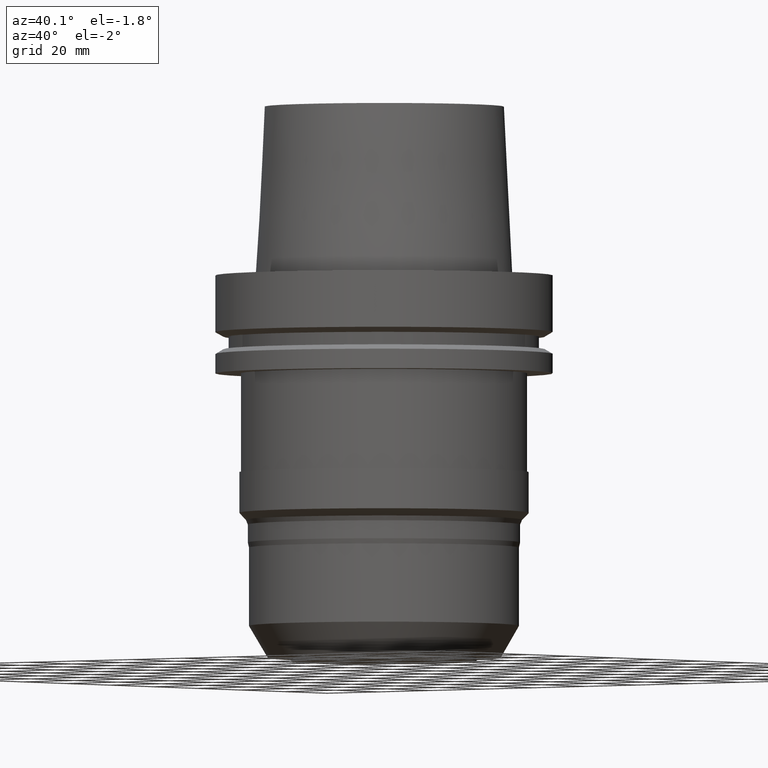
[diagram: clean part render]
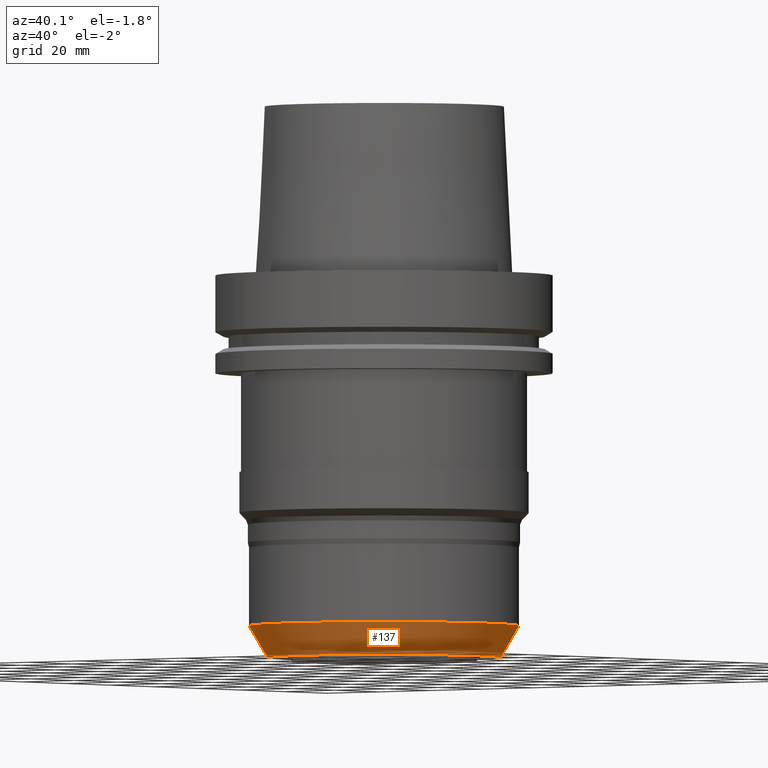
[diagram: same view with one face highlighted and labeled with its STEP entity id]
A machine part, auxiliary view. The second image highlights one B-rep face of the part: STEP entity #137.
In plain terms, the highlighted conical surface has half-angle 30 deg.
Its self-contained STEP definition (entity closure, byte-faithful):
#83=EDGE_CURVE('Unnamed[1]',#222,#222,#223,.T.);
#131=EDGE_CURVE('Unnamed[1]',#298,#298,#299,.T.);
#137=ADVANCED_FACE('Unnamed[1]',(#307,#308),#309,.T.);
#222=VERTEX_POINT('',#416);
#223=CIRCLE('',#417,39.9999995570343);
#298=VERTEX_POINT('',#511);
#299=CIRCLE('',#512,34.5151641397742);
#307=FACE_BOUND('',#522,.T.);
#308=FACE_BOUND('',#523,.T.);
#309=CONICAL_SURFACE('',#524,37.2575818484042,0.523598775598334);
#416=CARTESIAN_POINT('',(6.355916053967E-015,39.9999995570343,-103.799986386152));
#417=AXIS2_PLACEMENT_3D('',#640,#641,#642);
#511=CARTESIAN_POINT('',(6.9376241171697E-015,34.5151641397742,-113.299999999999));
#512=AXIS2_PLACEMENT_3D('',#726,#727,#728);
#522=EDGE_LOOP('',(#736));
#523=EDGE_LOOP('',(#737));
#524=AXIS2_PLACEMENT_3D('',#738,#739,#740);
#640=CARTESIAN_POINT('',(6.355916053967E-015,6.38401597048685E-015,-103.799986386152));
#641=DIRECTION('',(6.12323399573677E-017,5.38768000306664E-016,-1.0));
#642=DIRECTION('',(-3.78171780836974E-032,1.0,5.38768000306664E-016));
#726=CARTESIAN_POINT('',(6.9376241171697E-015,1.15023193081051E-014,-113.299999999999));
#727=DIRECTION('',(6.12323399573677E-017,5.38768000306644E-016,-1.0));
#728=DIRECTION('',(-3.78171780836942E-032,1.0,5.38768000306644E-016));
#736=ORIENTED_EDGE('',*,*,#131,.F.);
#737=ORIENTED_EDGE('',*,*,#83,.T.);
#738=CARTESIAN_POINT('',(6.64677008556835E-015,8.94316763929599E-015,-108.549993193076));
#739=DIRECTION('',(-6.12323399573677E-017,-5.38768000306611E-016,1.0));
#740=DIRECTION('',(-3.78171780836935E-032,1.0,5.38768000306611E-016));